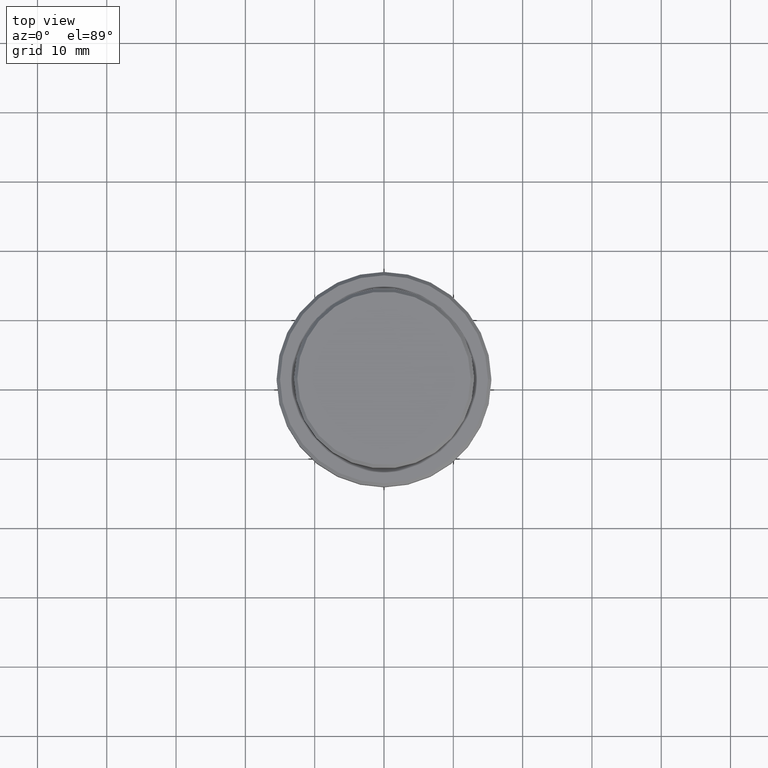
[diagram: clean part render]
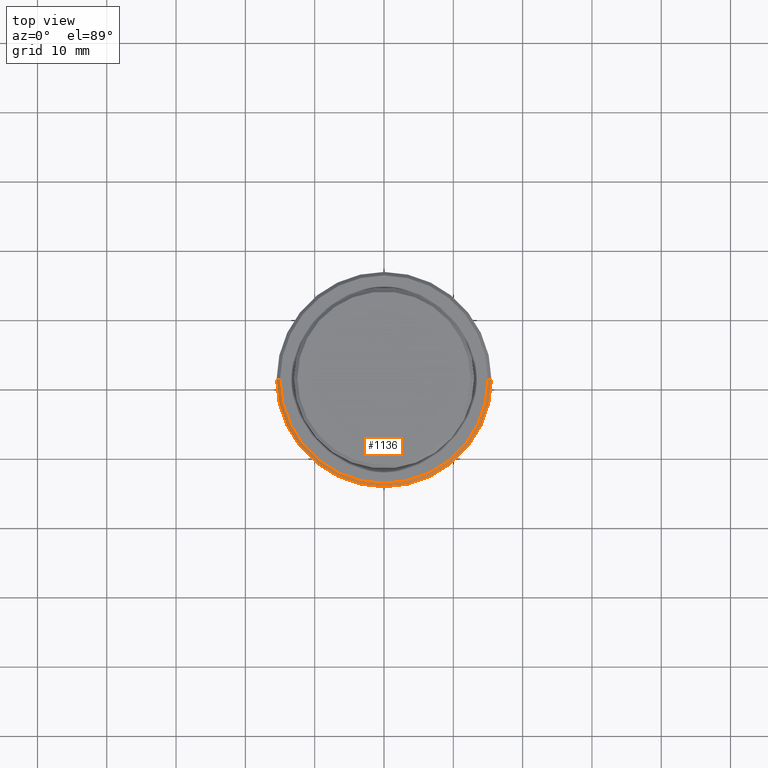
[diagram: same view with one face highlighted and labeled with its STEP entity id]
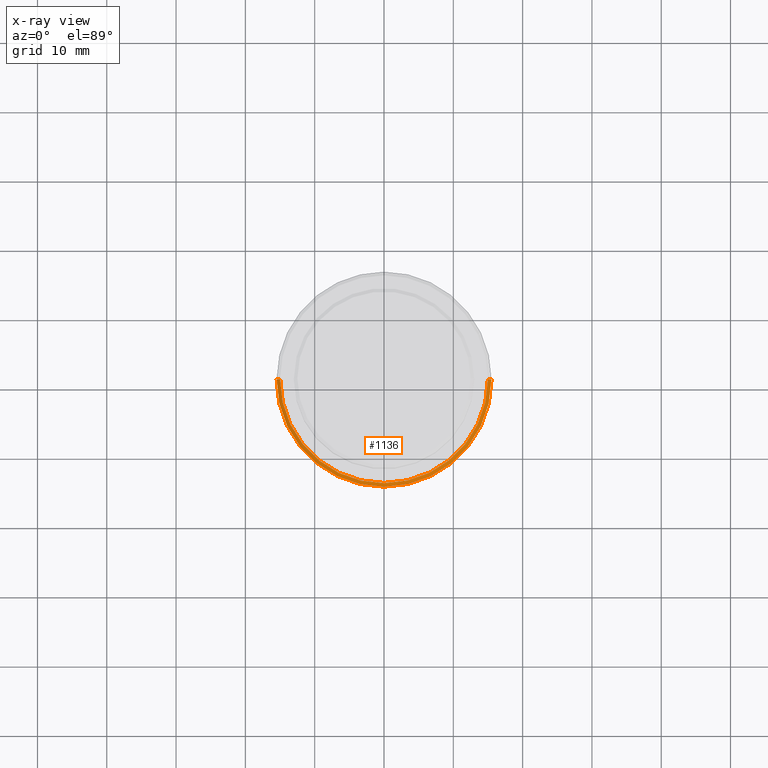
[diagram: x-ray of the same camera — body ghosted, the highlighted face saturated]
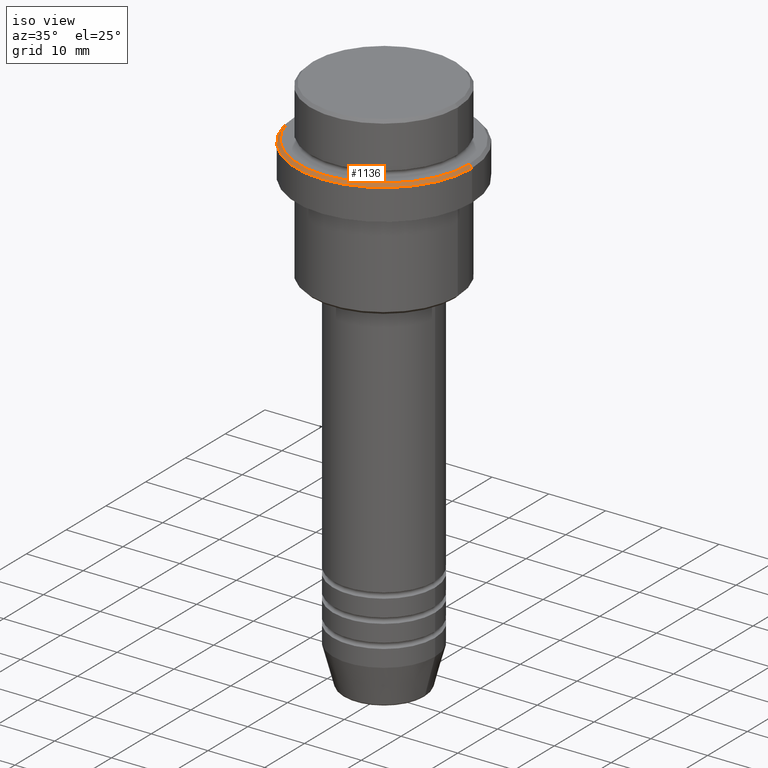
[diagram: same view with one face highlighted and labeled with its STEP entity id]
A machine part, top view. The second image highlights one B-rep face of the part: STEP entity #1136.
The next image is the same camera in x-ray: the body ghosted, the highlighted face saturated — about 0% of this face is hidden behind the body in this view.
A second angle (iso view) of the same face is appended — the face is thin or edge-on in the first view.
In plain terms, the highlighted conical surface has half-angle 45 deg.
Its self-contained STEP definition (entity closure, byte-faithful):
#27 = LINE ( 'NONE', #1238, #1073 ) ;
#46 = VERTEX_POINT ( 'NONE', #67 ) ;
#55 = CIRCLE ( 'NONE', #924, 15.50000000000000000 ) ;
#61 = DIRECTION ( 'NONE',  ( -0.000000000000000000, -0.000000000000000000, 1.000000000000000000 ) ) ;
#67 = CARTESIAN_POINT ( 'NONE',  ( 15.50000000000000000, 0.000000000000000000, -9.499999999999998224 ) ) ;
#74 = EDGE_CURVE ( 'NONE', #964, #766, #223, .T. ) ;
#84 = ORIENTED_EDGE ( 'NONE', *, *, #912, .F. ) ;
#180 = DIRECTION ( 'NONE',  ( 0.000000000000000000, 0.000000000000000000, -1.000000000000000000 ) ) ;
#223 = CIRCLE ( 'NONE', #1218, 15.00000000000001421 ) ;
#298 = DIRECTION ( 'NONE',  ( -1.000000000000000000, 0.000000000000000000, 0.000000000000000000 ) ) ;
#310 = DIRECTION ( 'NONE',  ( 0.000000000000000000, 0.000000000000000000, -1.000000000000000000 ) ) ;
#682 = AXIS2_PLACEMENT_3D ( 'NONE', #815, #180, #298 ) ;
#749 = DIRECTION ( 'NONE',  ( 1.000000000000000000, 0.000000000000000000, 0.000000000000000000 ) ) ;
#763 = EDGE_CURVE ( 'NONE', #964, #1030, #27, .T. ) ;
#766 = VERTEX_POINT ( 'NONE', #1413 ) ;
#793 = DIRECTION ( 'NONE',  ( -0.7071067811865389130, 0.000000000000000000, -0.7071067811865561215 ) ) ;
#795 = ORIENTED_EDGE ( 'NONE', *, *, #999, .F. ) ;
#815 = CARTESIAN_POINT ( 'NONE',  ( 0.000000000000000000, 0.000000000000000000, -9.000000000000000000 ) ) ;
#829 = CARTESIAN_POINT ( 'NONE',  ( 0.000000000000000000, 0.000000000000000000, -9.000000000000000000 ) ) ;
#843 = FACE_OUTER_BOUND ( 'NONE', #895, .T. ) ;
#895 = EDGE_LOOP ( 'NONE', ( #795, #965, #1082, #84 ) ) ;
#912 = EDGE_CURVE ( 'NONE', #46, #1030, #55, .T. ) ;
#923 = LINE ( 'NONE', #1126, #1339 ) ;
#924 = AXIS2_PLACEMENT_3D ( 'NONE', #1414, #310, #749 ) ;
#964 = VERTEX_POINT ( 'NONE', #1329 ) ;
#965 = ORIENTED_EDGE ( 'NONE', *, *, #74, .F. ) ;
#999 = EDGE_CURVE ( 'NONE', #766, #46, #923, .T. ) ;
#1030 = VERTEX_POINT ( 'NONE', #1335 ) ;
#1073 = VECTOR ( 'NONE', #793, 1000.000000000000000 ) ;
#1082 = ORIENTED_EDGE ( 'NONE', *, *, #763, .T. ) ;
#1126 = CARTESIAN_POINT ( 'NONE',  ( 15.00000000000001421, 1.836970198721031561E-15, -9.000000000000000000 ) ) ;
#1136 = ADVANCED_FACE ( 'NONE', ( #843 ), #1314, .T. ) ;
#1218 = AXIS2_PLACEMENT_3D ( 'NONE', #829, #61, #1274 ) ;
#1238 = CARTESIAN_POINT ( 'NONE',  ( -15.00000000000001421, 0.000000000000000000, -9.000000000000000000 ) ) ;
#1274 = DIRECTION ( 'NONE',  ( 1.000000000000000000, 0.000000000000000000, 0.000000000000000000 ) ) ;
#1314 = CONICAL_SURFACE ( 'NONE', #682, 15.00000000000001421, 0.7853981633974361776 ) ;
#1329 = CARTESIAN_POINT ( 'NONE',  ( -15.00000000000001421, 0.000000000000000000, -9.000000000000000000 ) ) ;
#1335 = CARTESIAN_POINT ( 'NONE',  ( -15.50000000000000000, 1.898202538678397557E-15, -9.499999999999998224 ) ) ;
#1339 = VECTOR ( 'NONE', #1364, 1000.000000000000000 ) ;
#1364 = DIRECTION ( 'NONE',  ( 0.7071067811865389130, 8.659560562354828088E-17, -0.7071067811865561215 ) ) ;
#1413 = CARTESIAN_POINT ( 'NONE',  ( 15.00000000000001421, 1.867586368699714559E-15, -9.000000000000000000 ) ) ;
#1414 = CARTESIAN_POINT ( 'NONE',  ( 0.000000000000000000, 0.000000000000000000, -9.499999999999998224 ) ) ;